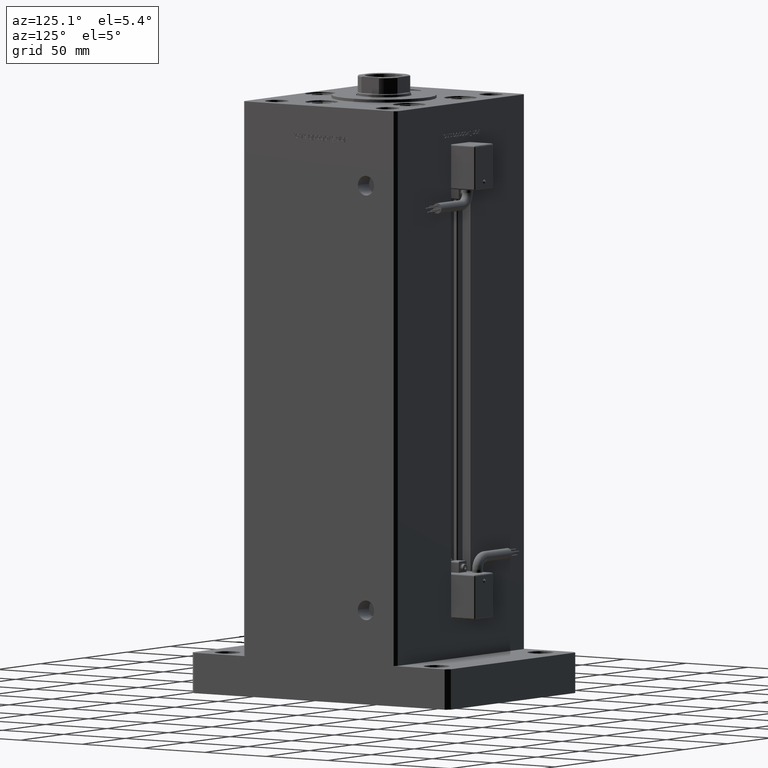
[diagram: clean part render]
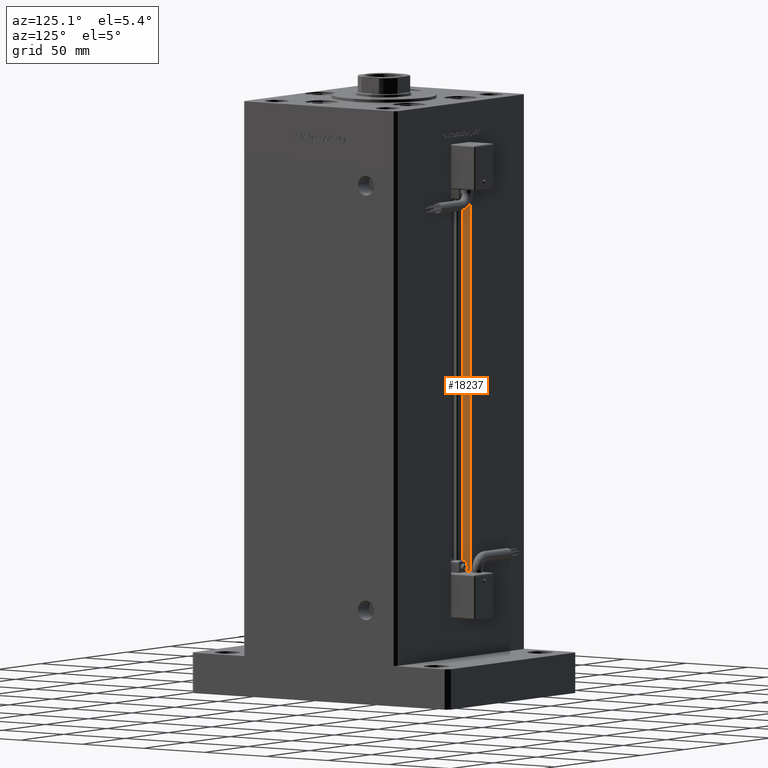
[diagram: same view with one face highlighted and labeled with its STEP entity id]
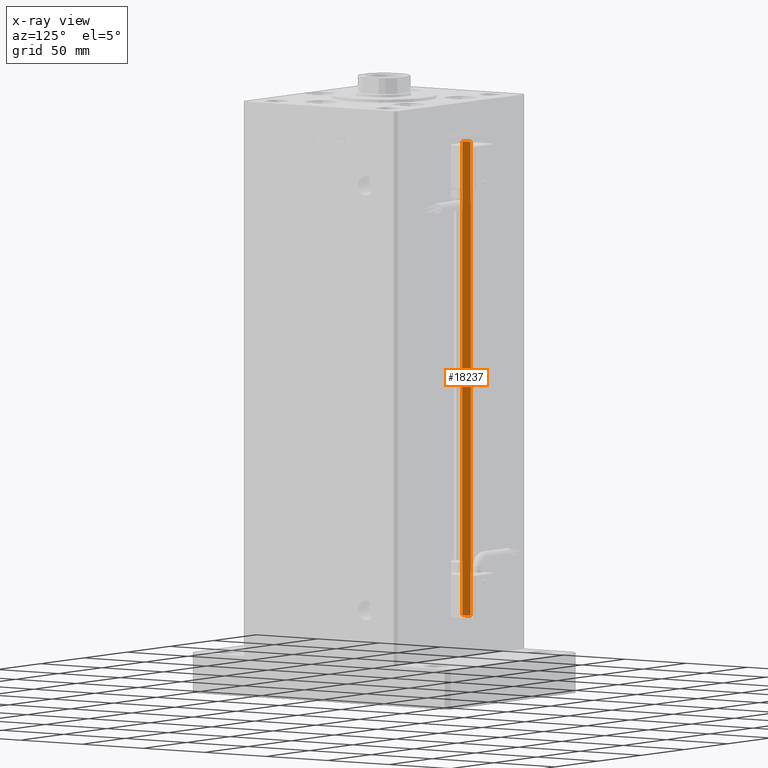
[diagram: x-ray of the same camera — body ghosted, the highlighted face saturated]
A machine part, auxiliary view. The second image highlights one B-rep face of the part: STEP entity #18237.
The next image is the same camera in x-ray: the body ghosted, the highlighted face saturated — about 0% of this face is hidden behind the body in this view.
In plain terms, the highlighted planar face has unit normal (-1, 0, 0).
Its self-contained STEP definition (entity closure, byte-faithful):
#11 = ORIENTED_EDGE ( 'NONE', *, *, #53858, .F. ) ;
#2477 = CARTESIAN_POINT ( 'NONE',  ( -11.25000000000000178, 55.99999999999999289, 0.000000000000000000 ) ) ;
#2690 = CARTESIAN_POINT ( 'NONE',  ( -11.25000000000000178, 55.99999999999999289, 317.0000000000000000 ) ) ;
#3106 = CARTESIAN_POINT ( 'NONE',  ( -11.25000000000000178, 62.49999999999999289, 0.000000000000000000 ) ) ;
#4196 = ORIENTED_EDGE ( 'NONE', *, *, #33386, .T. ) ;
#4338 = CARTESIAN_POINT ( 'NONE',  ( -11.25000000000000178, 62.49999999999999289, 317.0000000000000000 ) ) ;
#5157 = AXIS2_PLACEMENT_3D ( 'NONE', #14971, #41634, #7225 ) ;
#5417 = CARTESIAN_POINT ( 'NONE',  ( -11.25000000000000178, 62.49999999999999289, 0.000000000000000000 ) ) ;
#7128 = VERTEX_POINT ( 'NONE', #35678 ) ;
#7225 = DIRECTION ( 'NONE',  ( 0.000000000000000000, 0.000000000000000000, 1.000000000000000000 ) ) ;
#7278 = VERTEX_POINT ( 'NONE', #2690 ) ;
#14971 = CARTESIAN_POINT ( 'NONE',  ( -11.25000000000000178, 55.99999999999999289, 0.000000000000000000 ) ) ;
#18237 = ADVANCED_FACE ( 'NONE', ( #49940 ), #28167, .F. ) ;
#18444 = VERTEX_POINT ( 'NONE', #4338 ) ;
#20241 = EDGE_LOOP ( 'NONE', ( #35094, #11, #4196, #40289 ) ) ;
#20419 = LINE ( 'NONE', #55377, #30678 ) ;
#24259 = LINE ( 'NONE', #2477, #52919 ) ;
#25567 = VECTOR ( 'NONE', #33788, 1000.000000000000000 ) ;
#25574 = DIRECTION ( 'NONE',  ( 0.000000000000000000, 1.000000000000000000, 0.000000000000000000 ) ) ;
#28167 = PLANE ( 'NONE',  #5157 ) ;
#30678 = VECTOR ( 'NONE', #51094, 1000.000000000000000 ) ;
#31821 = VECTOR ( 'NONE', #25574, 1000.000000000000000 ) ;
#33386 = EDGE_CURVE ( 'NONE', #36187, #18444, #52107, .T. ) ;
#33788 = DIRECTION ( 'NONE',  ( -0.000000000000000000, -0.000000000000000000, 1.000000000000000000 ) ) ;
#35094 = ORIENTED_EDGE ( 'NONE', *, *, #41913, .F. ) ;
#35678 = CARTESIAN_POINT ( 'NONE',  ( -11.25000000000000178, 55.99999999999999289, 0.000000000000000000 ) ) ;
#36187 = VERTEX_POINT ( 'NONE', #5417 ) ;
#37169 = DIRECTION ( 'NONE',  ( -0.000000000000000000, -1.000000000000000000, -0.000000000000000000 ) ) ;
#38476 = CARTESIAN_POINT ( 'NONE',  ( -11.25000000000000178, 0.000000000000000000, 317.0000000000000000 ) ) ;
#40289 = ORIENTED_EDGE ( 'NONE', *, *, #52194, .F. ) ;
#41634 = DIRECTION ( 'NONE',  ( -1.000000000000000000, 0.000000000000000000, 0.000000000000000000 ) ) ;
#41913 = EDGE_CURVE ( 'NONE', #7128, #7278, #20419, .T. ) ;
#46515 = LINE ( 'NONE', #38476, #31821 ) ;
#49940 = FACE_OUTER_BOUND ( 'NONE', #20241, .T. ) ;
#51094 = DIRECTION ( 'NONE',  ( -0.000000000000000000, -0.000000000000000000, 1.000000000000000000 ) ) ;
#52107 = LINE ( 'NONE', #3106, #25567 ) ;
#52194 = EDGE_CURVE ( 'NONE', #7278, #18444, #46515, .T. ) ;
#52919 = VECTOR ( 'NONE', #37169, 1000.000000000000000 ) ;
#53858 = EDGE_CURVE ( 'NONE', #36187, #7128, #24259, .T. ) ;
#55377 = CARTESIAN_POINT ( 'NONE',  ( -11.25000000000000178, 55.99999999999999289, 0.000000000000000000 ) ) ;